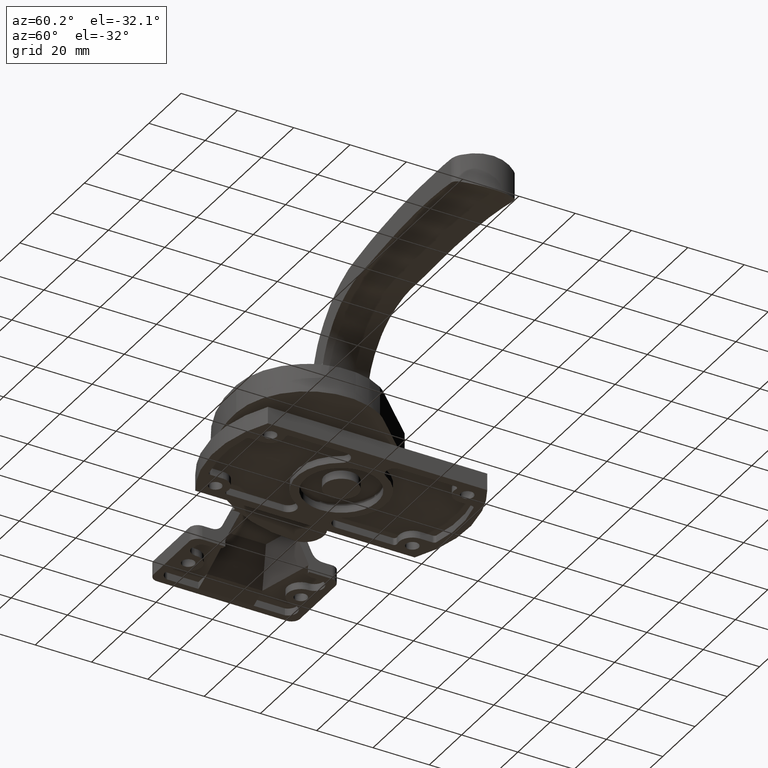
[diagram: clean part render]
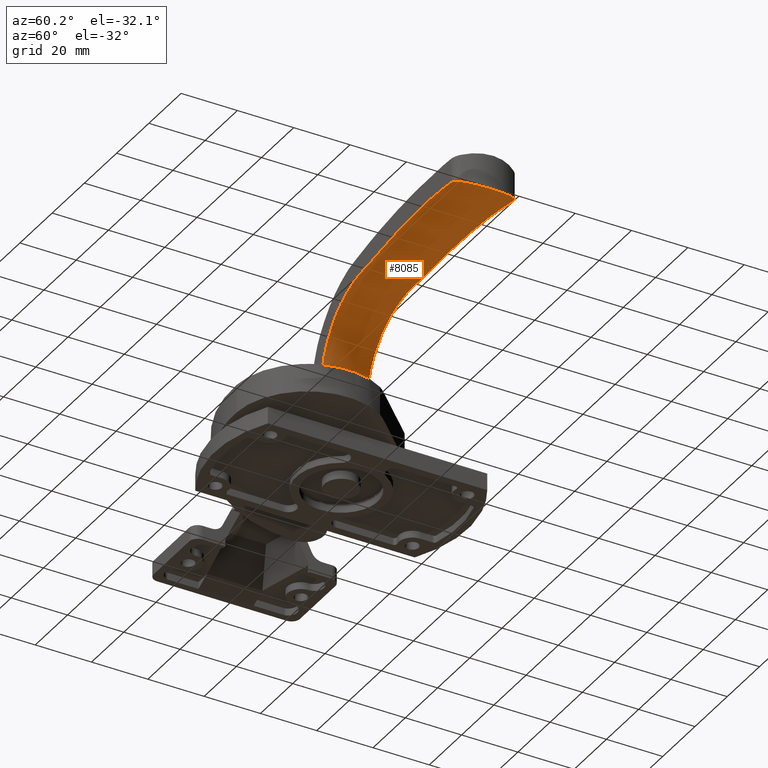
[diagram: same view with one face highlighted and labeled with its STEP entity id]
A machine part, auxiliary view. The second image highlights one B-rep face of the part: STEP entity #8085.
In plain terms, the highlighted face is a freeform B-spline surface patch.
Its self-contained STEP definition (entity closure, byte-faithful):
#5868=CARTESIAN_POINT('',(-123.615692548363400,28.490864937313098,36.193579327158162));
#5869=VERTEX_POINT('',#5868);
#5870=CARTESIAN_POINT('',(-120.389550418366400,29.957898758759299,37.108921338824203));
#5871=VERTEX_POINT('',#5870);
#5872=CARTESIAN_POINT('',(-123.615692548363400,28.490864937313098,36.193579327158162));
#5873=CARTESIAN_POINT('',(-123.421978747935200,28.727946603572370,36.279984811460103));
#5874=CARTESIAN_POINT('',(-123.205349963467200,28.938285569050301,36.366742885507442));
#5875=CARTESIAN_POINT('',(-122.847044018101500,29.215611528801379,36.495669488781971));
#5876=CARTESIAN_POINT('',(-122.721991572031600,29.301624050746121,36.538443184870452));
#5877=CARTESIAN_POINT('',(-122.525581913302010,29.420633547468299,36.602060244509254));
#5878=CARTESIAN_POINT('',(-122.458948845993800,29.458429548318779,36.623071019310338));
#5879=CARTESIAN_POINT('',(-122.324266093929300,29.529823545172491,36.664391395007627));
#5880=CARTESIAN_POINT('',(-122.256080965737400,29.563504384166691,36.684745062498607));
#5881=CARTESIAN_POINT('',(-121.910961185652400,29.721943288495901,36.784910449614742));
#5882=CARTESIAN_POINT('',(-121.621617655227600,29.817228624262960,36.859964513219182));
#5883=CARTESIAN_POINT('',(-121.242074236170790,29.894682470460928,36.945846386587213));
#5884=CARTESIAN_POINT('',(-121.165327105731900,29.908033695335220,36.962603246769739));
#5885=CARTESIAN_POINT('',(-121.011687538408000,29.930165949605239,36.994914742568220));
#5886=CARTESIAN_POINT('',(-120.934589956424400,29.938991844452978,37.010516599164532));
#5887=CARTESIAN_POINT('',(-120.702457584618500,29.958737905811439,37.055632388891119));
#5888=CARTESIAN_POINT('',(-120.546585795629890,29.962951256677790,37.083460333387357));
#5889=CARTESIAN_POINT('',(-120.389550418366400,29.957898758759299,37.108921338824203));
#5890=B_SPLINE_CURVE_WITH_KNOTS('',3,(#5872,#5873,#5874,#5875,#5876,#5877,#5878,#5879,#5880,#5881,#5882,#5883,#5884,#5885,#5886,#5887,#5888,#5889),.UNSPECIFIED.,.F.,.U.,(4,2,2,2,2,2,2,2,4),(0.0,0.250000000000007,0.375000000000011,0.437500000000008,0.500000000000005,0.750000000000007,0.812500000000005,0.875000000000003,1.0),.UNSPECIFIED.);
#5891=EDGE_CURVE('',#5869,#5871,#5890,.T.);
#5945=CARTESIAN_POINT('',(-120.389551045582000,8.042102221063660,37.108922308996753));
#5946=VERTEX_POINT('',#5945);
#5947=CARTESIAN_POINT('',(-123.615693634957200,9.509136392544681,36.193579059695601));
#5948=VERTEX_POINT('',#5947);
#5949=CARTESIAN_POINT('',(-120.389551045582000,8.042102221063660,37.108922308996753));
#5950=CARTESIAN_POINT('',(-120.703561031704790,8.031999153865606,37.058010073392602));
#5951=CARTESIAN_POINT('',(-121.010605127435600,8.058625506757279,36.998080177651843));
#5952=CARTESIAN_POINT('',(-121.386418290115000,8.134646441189624,36.913219352877519));
#5953=CARTESIAN_POINT('',(-121.461176385861510,8.152016747042772,36.895745482252202));
#5954=CARTESIAN_POINT('',(-121.609882261556190,8.191124077547274,36.859811275730742));
#5955=CARTESIAN_POINT('',(-121.683978700985900,8.212910208555460,36.841312448196668));
#5956=CARTESIAN_POINT('',(-121.904037691911200,8.284608739545414,36.784611842109882));
#5957=CARTESIAN_POINT('',(-122.046313563496400,8.340318943795277,36.745598009695627));
#5958=CARTESIAN_POINT('',(-122.322476506232210,8.466856082946904,36.665504187150361));
#5959=CARTESIAN_POINT('',(-122.456361972251300,8.537685626069450,36.624423318591539));
#5960=CARTESIAN_POINT('',(-122.650984486690110,8.655228354715383,36.561470171702339));
#5961=CARTESIAN_POINT('',(-122.714821784576700,8.696297115590760,36.540263363770407));
#5962=CARTESIAN_POINT('',(-122.840405845619300,8.782261741260509,36.497436706595700));
#5963=CARTESIAN_POINT('',(-122.902303374293400,8.827277153005836,36.475761992982797));
#5964=CARTESIAN_POINT('',(-123.204419072872800,9.060539831035175,36.367171975442091));
#5965=CARTESIAN_POINT('',(-123.422048618779700,9.272138837607029,36.279953961175487));
#5966=CARTESIAN_POINT('',(-123.615693634957200,9.509136392544681,36.193579059695601));
#5967=B_SPLINE_CURVE_WITH_KNOTS('',3,(#5949,#5950,#5951,#5952,#5953,#5954,#5955,#5956,#5957,#5958,#5959,#5960,#5961,#5962,#5963,#5964,#5965,#5966),.UNSPECIFIED.,.F.,.U.,(4,2,2,2,2,2,2,2,4),(0.0,0.249999999999992,0.312499999999993,0.374999999999993,0.499999999999995,0.624999999999996,0.687499999999995,0.749999999999995,1.0),.UNSPECIFIED.);
#5968=EDGE_CURVE('',#5946,#5948,#5967,.T.);
#6022=CARTESIAN_POINT('',(-123.615693634957100,9.509136392544665,36.193579059695601));
#6023=CARTESIAN_POINT('',(-123.878637533369000,9.830947609300599,36.076291448824250));
#6024=CARTESIAN_POINT('',(-124.128426728688590,10.163897751787850,35.962737784453431));
#6025=CARTESIAN_POINT('',(-124.601488741726800,10.852733392431260,35.744586586687959));
#6026=CARTESIAN_POINT('',(-124.824763768604700,11.208616116829759,35.639985749175771));
#6027=CARTESIAN_POINT('',(-125.139110014267600,11.760555582883640,35.490998902621463));
#6028=CARTESIAN_POINT('',(-125.240458723472100,11.947559284807580,35.442656879237880));
#6029=CARTESIAN_POINT('',(-125.387190840102090,12.232762097180650,35.372289137384989));
#6030=CARTESIAN_POINT('',(-125.435274101812200,12.328729873900951,35.349164370752433));
#6031=CARTESIAN_POINT('',(-125.529181825769300,12.521290164946500,35.303884262041890));
#6032=CARTESIAN_POINT('',(-125.575049892197000,12.617961293104260,35.281708166312420));
#6033=CARTESIAN_POINT('',(-125.798997474174200,13.103264836908989,35.173173092959679));
#6034=CARTESIAN_POINT('',(-125.960930406100200,13.497730832144610,35.093845470713539));
#6035=CARTESIAN_POINT('',(-126.250756026488300,14.299094002382930,34.950918117159013));
#6036=CARTESIAN_POINT('',(-126.378648325974690,14.705991016191900,34.887316500786781));
#6037=CARTESIAN_POINT('',(-126.600007577068500,15.532459745869870,34.776719639981472));
#6038=CARTESIAN_POINT('',(-126.693477258116200,15.952030287976161,34.729721929275158));
#6039=CARTESIAN_POINT('',(-126.806956931908000,16.591282311454670,34.672502995212717));
#6040=CARTESIAN_POINT('',(-126.840322662607310,16.806017959708509,34.655644890210930));
#6041=CARTESIAN_POINT('',(-126.897893216777310,17.238887924694041,34.626523542446392));
#6042=CARTESIAN_POINT('',(-126.922093118832000,17.457208953466662,34.614262765087553));
#6043=CARTESIAN_POINT('',(-126.980132429603900,18.111909716109651,34.584836962084651));
#6044=CARTESIAN_POINT('',(-126.999709136309310,18.549753008760259,34.574884513113567));
#6045=CARTESIAN_POINT('',(-127.000354283385090,19.428214836342210,34.574556812527263));
#6046=CARTESIAN_POINT('',(-126.981415245718490,19.863876329029331,34.584185000516449));
#6047=CARTESIAN_POINT('',(-126.906496260141400,20.727845179823550,34.622171756759087));
#6048=CARTESIAN_POINT('',(-126.850512628986810,21.156236615567291,34.650532165927778));
#6049=CARTESIAN_POINT('',(-126.702081959232200,22.005970248648168,34.725391397864819));
#6050=CARTESIAN_POINT('',(-126.609634509337600,22.427312286327361,34.771891456875508));
#6051=CARTESIAN_POINT('',(-126.443426663993710,23.054031372257882,34.854959458019117));
#6052=CARTESIAN_POINT('',(-126.383428143041800,23.262054287058369,34.884869980798172));
#6053=CARTESIAN_POINT('',(-126.286452634472990,23.572752298018269,34.933044607397370));
#6054=CARTESIAN_POINT('',(-126.253000945669300,23.675967558650470,34.949635974217173));
#6055=CARTESIAN_POINT('',(-126.184116542402510,23.880936544601081,34.983738880782028));
#6056=CARTESIAN_POINT('',(-126.148648713236100,23.982804002501300,35.001267873792308));
#6057=CARTESIAN_POINT('',(-125.966248241994710,24.489103632254441,35.091238350115837));
#6058=CARTESIAN_POINT('',(-125.804164856967600,24.884441351323179,35.170647122999881));
#6059=CARTESIAN_POINT('',(-125.448829624672300,25.656618791250398,35.342900739872157));
#6060=CARTESIAN_POINT('',(-125.255575090193900,26.033456447282340,35.435748737750806));
#6061=CARTESIAN_POINT('',(-124.838255322186200,26.769102329576071,35.633638670258719));
#6062=CARTESIAN_POINT('',(-124.614190477609800,27.127910136372609,35.738683198171763));
#6063=CARTESIAN_POINT('',(-124.314604852576590,27.565198587889022,35.876892417377043));
#6064=CARTESIAN_POINT('',(-124.253713007974700,27.652085918623559,35.904878171898019));
#6065=CARTESIAN_POINT('',(-124.130429340569090,27.824100431347230,35.961309471838113));
#6066=CARTESIAN_POINT('',(-123.943087309525200,28.079726911828100,36.046722911716472));
#6067=CARTESIAN_POINT('',(-123.748551326102500,28.328262058193690,36.134316926090797));
#6068=CARTESIAN_POINT('',(-123.615692548363500,28.490864937313159,36.193579327158140));
#6069=B_SPLINE_CURVE_WITH_KNOTS('',3,(#6022,#6023,#6024,#6025,#6026,#6027,#6028,#6029,#6030,#6031,#6032,#6033,#6034,#6035,#6036,#6037,#6038,#6039,#6040,#6041,#6042,#6043,#6044,#6045,#6046,#6047,#6048,#6049,#6050,#6051,#6052,#6053,#6054,#6055,#6056,#6057,#6058,#6059,#6060,#6061,#6062,#6063,#6064,#6065,#6066,#6067,#6068),.UNSPECIFIED.,.F.,.U.,(4,2,2,2,2,2,2,2,2,2,2,2,2,2,2,2,2,2,2,2,2,2,1,4),(0.0,0.062500000000001,0.125000000000002,0.156250000000004,0.171875000000006,0.187500000000007,0.250000000000006,0.312500000000005,0.375000000000004,0.406250000000004,0.437500000000004,0.500000000000002,0.562500000000000,0.624999999999999,0.687499999999997,0.718749999999997,0.734374999999996,0.749999999999996,0.812499999999996,0.874999999999996,0.937499999999996,0.953124999999997,0.968749999999998,0.999999972635588),.UNSPECIFIED.);
#6070=EDGE_CURVE('',#5948,#5869,#6069,.T.);
#7224=CARTESIAN_POINT('',(-36.129667860286297,10.753235243308721,17.600000000000001));
#7225=VERTEX_POINT('',#7224);
#7231=CARTESIAN_POINT('',(-36.129667522280492,27.246765745685199,17.600000000000001));
#7232=VERTEX_POINT('',#7231);
#7233=CARTESIAN_POINT('',(-36.129667522280492,27.246765745685199,17.600000000000001));
#7234=CARTESIAN_POINT('',(-37.038081067834497,24.588788363700949,17.600000000000001));
#7235=CARTESIAN_POINT('',(-37.492287870669450,21.794394447750001,17.600000000000001));
#7236=CARTESIAN_POINT('',(-37.492287985217153,16.205606597229352,17.600000000000001));
#7237=CARTESIAN_POINT('',(-37.038081296929953,13.411212662659560,17.600000000000001));
#7238=CARTESIAN_POINT('',(-36.129667860286297,10.753235243308721,17.600000000000001));
#7239=B_SPLINE_CURVE_WITH_KNOTS('',3,(#7233,#7234,#7235,#7236,#7237,#7238),.UNSPECIFIED.,.F.,.U.,(4,2,4),(0.0,0.500000000000000,1.0),.UNSPECIFIED.);
#7240=EDGE_CURVE('',#7232,#7225,#7239,.T.);
#7465=CARTESIAN_POINT('',(-114.780559554541600,29.777424732715751,37.922086692367301));
#7466=VERTEX_POINT('',#7465);
#7467=CARTESIAN_POINT('',(-120.389550418366400,29.957898758759299,37.108921338824203));
#7468=CARTESIAN_POINT('',(-118.521656148282700,29.897797680449500,37.411788454358700));
#7469=CARTESIAN_POINT('',(-116.652382161092110,29.837652208574589,37.689848986762712));
#7470=CARTESIAN_POINT('',(-114.780559554541600,29.777424732715751,37.922086692367301));
#7471=B_SPLINE_CURVE_WITH_KNOTS('',3,(#7467,#7468,#7469,#7470),.UNSPECIFIED.,.F.,.U.,(4,4),(0.065240312748936,0.120512185644654),.UNSPECIFIED.);
#7472=EDGE_CURVE('',#5871,#7466,#7471,.T.);
#7575=CARTESIAN_POINT('',(-37.088196315556303,27.277607220624549,20.485746129402450));
#7576=VERTEX_POINT('',#7575);
#7577=CARTESIAN_POINT('',(-37.088196315556303,27.277607220624549,20.485746129402450));
#7578=CARTESIAN_POINT('',(-36.725643646925903,27.265941781805640,19.543922892398150));
#7579=CARTESIAN_POINT('',(-36.427655584580201,27.256353763812751,18.571961446199051));
#7580=CARTESIAN_POINT('',(-36.129667522280492,27.246765745685199,17.600000000000001));
#7581=B_SPLINE_CURVE_WITH_KNOTS('',3,(#7577,#7578,#7579,#7580),.UNSPECIFIED.,.F.,.U.,(4,4),(0.970821272492334,1.0),.UNSPECIFIED.);
#7582=EDGE_CURVE('',#7576,#7232,#7581,.T.);
#7584=CARTESIAN_POINT('',(-39.189401604279396,27.345215278331551,24.522012288374800));
#7585=VERTEX_POINT('',#7584);
#7586=CARTESIAN_POINT('',(-39.189401604279396,27.345215278331551,24.522012288374800));
#7587=CARTESIAN_POINT('',(-38.269910115840077,27.315629861835490,23.142959750252039));
#7588=CARTESIAN_POINT('',(-37.611736571111543,27.294452571243269,21.845775777099739));
#7589=CARTESIAN_POINT('',(-37.088196315556303,27.277607220624549,20.485746129402450));
#7590=B_SPLINE_CURVE_WITH_KNOTS('',3,(#7586,#7587,#7588,#7589),.UNSPECIFIED.,.F.,.U.,(4,4),(0.928686046970893,0.970821272492334),.UNSPECIFIED.);
#7591=EDGE_CURVE('',#7585,#7576,#7590,.T.);
#7593=CARTESIAN_POINT('',(-43.148851474079201,27.472613927441198,29.410390440262852));
#7594=VERTEX_POINT('',#7593);
#7595=CARTESIAN_POINT('',(-43.148851474079201,27.472613927441198,29.410390440262852));
#7596=CARTESIAN_POINT('',(-42.007600545758379,27.435893213366459,28.229258528821049));
#7597=CARTESIAN_POINT('',(-40.379587236531698,27.383510507902841,26.307051668979309));
#7598=CARTESIAN_POINT('',(-39.189401604279396,27.345215278331551,24.522012288374800));
#7599=B_SPLINE_CURVE_WITH_KNOTS('',3,(#7595,#7596,#7597,#7598),.UNSPECIFIED.,.F.,.U.,(4,4),(0.874146401245127,0.928686046970893),.UNSPECIFIED.);
#7600=EDGE_CURVE('',#7594,#7585,#7599,.T.);
#7602=CARTESIAN_POINT('',(-45.546003469512598,27.549744320796549,31.490515649748900));
#7603=VERTEX_POINT('',#7602);
#7604=CARTESIAN_POINT('',(-45.546003469512598,27.549744320796549,31.490515649748900));
#7605=CARTESIAN_POINT('',(-44.810127426924673,27.526066886602429,30.937108745374740));
#7606=CARTESIAN_POINT('',(-44.177034080810813,27.505696572617580,30.474502860646101));
#7607=CARTESIAN_POINT('',(-43.148851474079201,27.472613927441198,29.410390440262852));
#7608=B_SPLINE_CURVE_WITH_KNOTS('',3,(#7604,#7605,#7606,#7607),.UNSPECIFIED.,.F.,.U.,(4,4),(0.825010217675883,0.874146401245127),.UNSPECIFIED.);
#7609=EDGE_CURVE('',#7603,#7594,#7608,.T.);
#7611=CARTESIAN_POINT('',(-48.121576841421202,27.632615572877949,33.246233073444550));
#7612=VERTEX_POINT('',#7611);
#7613=CARTESIAN_POINT('',(-48.121576841421223,27.632615572878059,33.246233073444579));
#7614=CARTESIAN_POINT('',(-47.007035433759647,27.596754260225591,32.600999057588439));
#7615=CARTESIAN_POINT('',(-46.231875114350643,27.571812821191529,32.006317336175577));
#7616=CARTESIAN_POINT('',(-45.546003469512598,27.549744320796549,31.490515649748900));
#7617=B_SPLINE_CURVE_WITH_KNOTS('',3,(#7613,#7614,#7615,#7616),.UNSPECIFIED.,.F.,.U.,(4,4),(0.779212945995489,0.825010217675883),.UNSPECIFIED.);
#7618=EDGE_CURVE('',#7612,#7603,#7617,.T.);
#7620=CARTESIAN_POINT('',(-56.302319424945402,27.895837886109700,36.487496709594502));
#7621=VERTEX_POINT('',#7620);
#7622=CARTESIAN_POINT('',(-56.302319424945424,27.895837886109671,36.487496709594488));
#7623=CARTESIAN_POINT('',(-53.331451256396313,27.800247689541632,35.774575805222980));
#7624=CARTESIAN_POINT('',(-50.159292776793187,27.698180806931251,34.425914355015543));
#7625=CARTESIAN_POINT('',(-48.121576841421209,27.632615572878059,33.246233073444579));
#7626=B_SPLINE_CURVE_WITH_KNOTS('',3,(#7622,#7623,#7624,#7625),.UNSPECIFIED.,.F.,.U.,(4,4),(0.695481799124079,0.779212945995489),.UNSPECIFIED.);
#7627=EDGE_CURVE('',#7621,#7612,#7626,.T.);
#7629=CARTESIAN_POINT('',(-67.000035754978796,28.240045958902350,37.447725859809047));
#7630=VERTEX_POINT('',#7629);
#7631=CARTESIAN_POINT('',(-67.000035754978896,28.240045958902279,37.447725859809083));
#7632=CARTESIAN_POINT('',(-63.469028742676592,28.126432821179659,37.274765747341583));
#7633=CARTESIAN_POINT('',(-60.045443866913807,28.016276081575331,37.385736385994001));
#7634=CARTESIAN_POINT('',(-56.302319424945502,27.895837886109671,36.487496709594510));
#7635=B_SPLINE_CURVE_WITH_KNOTS('',3,(#7631,#7632,#7633,#7634),.UNSPECIFIED.,.F.,.U.,(4,4),(0.589985329867594,0.695481799124079),.UNSPECIFIED.);
#7636=EDGE_CURVE('',#7630,#7621,#7635,.T.);
#7638=CARTESIAN_POINT('',(-74.000035754978597,28.465276880644399,37.998597684121400));
#7639=VERTEX_POINT('',#7638);
#7640=CARTESIAN_POINT('',(-74.000035754978484,28.465276880644272,37.998597684121400));
#7641=CARTESIAN_POINT('',(-71.654956103988596,28.389821959022719,37.794445522554248));
#7642=CARTESIAN_POINT('',(-69.304616226357453,28.314197785159031,37.560611644552992));
#7643=CARTESIAN_POINT('',(-67.000035754978754,28.240045958902279,37.447725859809083));
#7644=B_SPLINE_CURVE_WITH_KNOTS('',3,(#7640,#7641,#7642,#7643),.UNSPECIFIED.,.F.,.U.,(4,4),(0.521131005307820,0.589985329867594),.UNSPECIFIED.);
#7645=EDGE_CURVE('',#7639,#7630,#7644,.T.);
#7647=CARTESIAN_POINT('',(-97.000035754978896,29.205321337796949,38.969999581346897));
#7648=VERTEX_POINT('',#7647);
#7649=CARTESIAN_POINT('',(-97.000035754978867,29.205321337796700,38.969999581346890));
#7650=CARTESIAN_POINT('',(-89.334953187948102,28.958690821825108,39.018865235086352));
#7651=CARTESIAN_POINT('',(-81.695819146450887,28.712895221614009,38.668558217725682));
#7652=CARTESIAN_POINT('',(-74.000035754978498,28.465276880644272,37.998597684121400));
#7653=B_SPLINE_CURVE_WITH_KNOTS('',3,(#7649,#7650,#7651,#7652),.UNSPECIFIED.,.F.,.U.,(4,4),(0.295173662172599,0.521131005307820),.UNSPECIFIED.);
#7654=EDGE_CURVE('',#7648,#7639,#7653,.T.);
#7656=CARTESIAN_POINT('',(-114.780559554541600,29.777424732715499,37.922086692367273));
#7657=CARTESIAN_POINT('',(-108.865516938057890,29.587103232622070,38.655947263671372));
#7658=CARTESIAN_POINT('',(-102.925024163366300,29.395962852158419,38.932227198669658));
#7659=CARTESIAN_POINT('',(-97.000035754978867,29.205321337796700,38.969999581346890));
#7660=B_SPLINE_CURVE_WITH_KNOTS('',3,(#7656,#7657,#7658,#7659),.UNSPECIFIED.,.F.,.U.,(4,4),(0.120512185644654,0.295173662172599),.UNSPECIFIED.);
#7661=EDGE_CURVE('',#7466,#7648,#7660,.T.);
#7681=CARTESIAN_POINT('',(-114.780559554541600,8.222576267285890,37.922086692367301));
#7682=VERTEX_POINT('',#7681);
#7683=CARTESIAN_POINT('',(-120.389551045582000,8.042102221063660,37.108922308996753));
#7684=CARTESIAN_POINT('',(-118.521656566568690,8.102203306095110,37.411789104678242));
#7685=CARTESIAN_POINT('',(-116.652382370383510,8.162348784693755,37.689849315295270));
#7686=CARTESIAN_POINT('',(-114.780559554541600,8.222576267285890,37.922086692367301));
#7687=B_SPLINE_CURVE_WITH_KNOTS('',3,(#7683,#7684,#7685,#7686),.UNSPECIFIED.,.F.,.U.,(4,4),(0.0,0.055271877413623),.UNSPECIFIED.);
#7688=EDGE_CURVE('',#5946,#7682,#7687,.T.);
#7690=CARTESIAN_POINT('',(-97.000035754978995,8.794679662204610,38.969999581346897));
#7691=VERTEX_POINT('',#7690);
#7692=CARTESIAN_POINT('',(-114.780559554541600,8.222576267285890,37.922086692367301));
#7693=CARTESIAN_POINT('',(-108.865516938054200,8.412897767378226,38.655947263671393));
#7694=CARTESIAN_POINT('',(-102.925024163350700,8.604038147842237,38.932227198669693));
#7695=CARTESIAN_POINT('',(-97.000035754978995,8.794679662204610,38.969999581346897));
#7696=B_SPLINE_CURVE_WITH_KNOTS('',3,(#7692,#7693,#7694,#7695),.UNSPECIFIED.,.F.,.U.,(4,4),(0.120512185644654,0.295173662172599),.UNSPECIFIED.);
#7697=EDGE_CURVE('',#7682,#7691,#7696,.T.);
#7699=CARTESIAN_POINT('',(-74.000035754968494,9.534724119357550,37.998597684121400));
#7700=VERTEX_POINT('',#7699);
#7701=CARTESIAN_POINT('',(-97.000035754978995,8.794679662204610,38.969999581346897));
#7702=CARTESIAN_POINT('',(-89.334953187968381,9.041310178174321,39.018865235086373));
#7703=CARTESIAN_POINT('',(-81.695819146537701,9.287105778383234,38.668558217725682));
#7704=CARTESIAN_POINT('',(-74.000035754968494,9.534724119357550,37.998597684121400));
#7705=B_SPLINE_CURVE_WITH_KNOTS('',3,(#7701,#7702,#7703,#7704),.UNSPECIFIED.,.F.,.U.,(4,4),(0.295173662172600,0.521131005307820),.UNSPECIFIED.);
#7706=EDGE_CURVE('',#7691,#7700,#7705,.T.);
#7708=CARTESIAN_POINT('',(-67.000035754968408,9.759955041099730,37.447725859809047));
#7709=VERTEX_POINT('',#7708);
#7710=CARTESIAN_POINT('',(-74.000035754968494,9.534724119357550,37.998597684121400));
#7711=CARTESIAN_POINT('',(-71.654956103962334,9.610179040978148,37.794445522554263));
#7712=CARTESIAN_POINT('',(-69.304616226290406,9.685803214843144,37.560611644552992));
#7713=CARTESIAN_POINT('',(-67.000035754968408,9.759955041099730,37.447725859809047));
#7714=B_SPLINE_CURVE_WITH_KNOTS('',3,(#7710,#7711,#7712,#7713),.UNSPECIFIED.,.F.,.U.,(4,4),(0.521131005307820,0.589985329867594),.UNSPECIFIED.);
#7715=EDGE_CURVE('',#7700,#7709,#7714,.T.);
#7717=CARTESIAN_POINT('',(-56.302319424945502,10.104163113892460,36.487496709594453));
#7718=VERTEX_POINT('',#7717);
#7719=CARTESIAN_POINT('',(-67.000035754968408,9.759955041099730,37.447725859809047));
#7720=CARTESIAN_POINT('',(-63.469028742779500,9.873568178817047,37.274765747341590));
#7721=CARTESIAN_POINT('',(-60.045443867372931,9.983724918409900,37.385736385994008));
#7722=CARTESIAN_POINT('',(-56.302319424945502,10.104163113892460,36.487496709594453));
#7723=B_SPLINE_CURVE_WITH_KNOTS('',3,(#7719,#7720,#7721,#7722),.UNSPECIFIED.,.F.,.U.,(4,4),(0.589985329867594,0.695481799124079),.UNSPECIFIED.);
#7724=EDGE_CURVE('',#7709,#7718,#7723,.T.);
#7726=CARTESIAN_POINT('',(-48.121576841421302,10.367385427124800,33.246233073444550));
#7727=VERTEX_POINT('',#7726);
#7728=CARTESIAN_POINT('',(-56.302319424945502,10.104163113892460,36.487496709594453));
#7729=CARTESIAN_POINT('',(-53.331451256031947,10.199753310470101,35.774575805222980));
#7730=CARTESIAN_POINT('',(-50.159292775550881,10.301820193108730,34.425914355015543));
#7731=CARTESIAN_POINT('',(-48.121576841421302,10.367385427124800,33.246233073444550));
#7732=B_SPLINE_CURVE_WITH_KNOTS('',3,(#7728,#7729,#7730,#7731),.UNSPECIFIED.,.F.,.U.,(4,4),(0.695481799124079,0.779212945995489),.UNSPECIFIED.);
#7733=EDGE_CURVE('',#7718,#7727,#7732,.T.);
#7735=CARTESIAN_POINT('',(-45.546003469517402,10.450256679206380,31.490515649752140));
#7736=VERTEX_POINT('',#7735);
#7737=CARTESIAN_POINT('',(-48.121576841421302,10.367385427124800,33.246233073444550));
#7738=CARTESIAN_POINT('',(-47.007035434432922,10.403246739752740,32.600999057584851));
#7739=CARTESIAN_POINT('',(-46.231875116335253,10.428188178744600,32.006317336168962));
#7740=CARTESIAN_POINT('',(-45.546003469517402,10.450256679206380,31.490515649752140));
#7741=B_SPLINE_CURVE_WITH_KNOTS('',3,(#7737,#7738,#7739,#7740),.UNSPECIFIED.,.F.,.U.,(4,4),(0.779212945995489,0.825010217675883),.UNSPECIFIED.);
#7742=EDGE_CURVE('',#7727,#7736,#7741,.T.);
#7744=CARTESIAN_POINT('',(-43.148851474079152,10.527387072562240,29.410390440262749));
#7745=VERTEX_POINT('',#7744);
#7746=CARTESIAN_POINT('',(-45.546003469517402,10.450256679206380,31.490515649752140));
#7747=CARTESIAN_POINT('',(-44.810127424786003,10.473934113466351,30.937108745374740));
#7748=CARTESIAN_POINT('',(-44.177034072726663,10.494304427642490,30.474502860646101));
#7749=CARTESIAN_POINT('',(-43.148851474079152,10.527387072562240,29.410390440262749));
#7750=B_SPLINE_CURVE_WITH_KNOTS('',3,(#7746,#7747,#7748,#7749),.UNSPECIFIED.,.F.,.U.,(4,4),(0.825010217675883,0.874146401245127),.UNSPECIFIED.);
#7751=EDGE_CURVE('',#7736,#7745,#7750,.T.);
#7753=CARTESIAN_POINT('',(-39.189401604279553,10.654785721672740,24.522012288374899));
#7754=VERTEX_POINT('',#7753);
#7755=CARTESIAN_POINT('',(-43.148851474079152,10.527387072562240,29.410390440262749));
#7756=CARTESIAN_POINT('',(-42.007600554731447,10.564107786344771,28.229258528821049));
#7757=CARTESIAN_POINT('',(-40.379587271762773,10.616490490963519,26.307051668979309));
#7758=CARTESIAN_POINT('',(-39.189401604279553,10.654785721672740,24.522012288374899));
#7759=B_SPLINE_CURVE_WITH_KNOTS('',3,(#7755,#7756,#7757,#7758),.UNSPECIFIED.,.F.,.U.,(4,4),(0.874146401245127,0.928686046970893),.UNSPECIFIED.);
#7760=EDGE_CURVE('',#7745,#7754,#7759,.T.);
#7762=CARTESIAN_POINT('',(-37.088196315556452,10.722393779380480,20.485746129402351));
#7763=VERTEX_POINT('',#7762);
#7764=CARTESIAN_POINT('',(-39.189401604279553,10.654785721672740,24.522012288374899));
#7765=CARTESIAN_POINT('',(-38.269910088621927,10.684371139040220,23.142959750252061));
#7766=CARTESIAN_POINT('',(-37.611736479975377,10.705548431689040,21.845775777099760));
#7767=CARTESIAN_POINT('',(-37.088196315556452,10.722393779380480,20.485746129402351));
#7768=B_SPLINE_CURVE_WITH_KNOTS('',3,(#7764,#7765,#7766,#7767),.UNSPECIFIED.,.F.,.U.,(4,4),(0.928686046970893,0.970821272492334),.UNSPECIFIED.);
#7769=EDGE_CURVE('',#7754,#7763,#7768,.T.);
#7771=CARTESIAN_POINT('',(-37.088196315556452,10.722393779380480,20.485746129402351));
#7772=CARTESIAN_POINT('',(-36.725643710037900,10.734059216163610,19.543922892398150));
#7773=CARTESIAN_POINT('',(-36.427655785161797,10.743647229733300,18.571961446199051));
#7774=CARTESIAN_POINT('',(-36.129667860286297,10.753235243308721,17.600000000000001));
#7775=B_SPLINE_CURVE_WITH_KNOTS('',3,(#7771,#7772,#7773,#7774),.UNSPECIFIED.,.F.,.U.,(4,4),(0.970821272492334,1.0),.UNSPECIFIED.);
#7776=EDGE_CURVE('',#7763,#7225,#7775,.T.);
#7972=CARTESIAN_POINT('',(-127.000035754979810,7.829404283309091,35.967370994336399));
#7973=CARTESIAN_POINT('',(-127.000035754979810,11.480631780690040,35.038936070143187));
#7974=CARTESIAN_POINT('',(-127.000035754979810,15.240316140345101,34.574718608046602));
#7975=CARTESIAN_POINT('',(-127.000035754979810,22.759684859655099,34.574718608046602));
#7976=CARTESIAN_POINT('',(-127.000035754979810,26.519369219310150,35.038936070143187));
#7977=CARTESIAN_POINT('',(-127.000035754979810,30.170596716691101,35.967370994336399));
#7978=CARTESIAN_POINT('',(-122.930915677877390,7.960331664115481,36.691555839308947));
#7979=CARTESIAN_POINT('',(-122.931161446233200,11.567794021505280,35.767264000183701));
#7980=CARTESIAN_POINT('',(-122.931279556168410,15.283898398166251,35.305143744857553));
#7981=CARTESIAN_POINT('',(-122.931279556167990,22.716102601834152,35.305143744857553));
#7982=CARTESIAN_POINT('',(-122.931161446232390,26.432206978495000,35.767264000183701));
#7983=CARTESIAN_POINT('',(-122.930915677876000,30.039669335884700,36.691555839308947));
#7984=CARTESIAN_POINT('',(-112.964312976637200,8.281015537406450,38.465320804544447));
#7985=CARTESIAN_POINT('',(-112.965160711883400,11.781282787699119,37.551176732515650));
#7986=CARTESIAN_POINT('',(-112.965568111585600,15.390645567160000,37.094193220826163));
#7987=CARTESIAN_POINT('',(-112.965568111584200,22.609355432840751,37.094193220826163));
#7988=CARTESIAN_POINT('',(-112.965160711880400,26.218718212301400,37.551176732515650));
#7989=CARTESIAN_POINT('',(-112.964312976632600,29.718985462593601,38.465320804544447));
#7990=CARTESIAN_POINT('',(-95.239883793709808,8.851314040580911,39.289647056298087));
#7991=CARTESIAN_POINT('',(-95.233985046701292,12.159504800521100,38.392093050940112));
#7992=CARTESIAN_POINT('',(-95.231150260976705,15.579725350917100,37.942700074584053));
#7993=CARTESIAN_POINT('',(-95.231150260987206,22.420275649078850,37.942700074584053));
#7994=CARTESIAN_POINT('',(-95.233985046722395,25.840496199476551,38.392093050940112));
#7995=CARTESIAN_POINT('',(-95.239883793740901,29.148686959420200,39.289647056298037));
#7996=CARTESIAN_POINT('',(-79.368001836659616,9.362005269576221,38.561811728612987));
#7997=CARTESIAN_POINT('',(-79.388298252764599,12.492589107644379,37.615778008606704));
#7998=CARTESIAN_POINT('',(-79.398052187041316,15.746388735437449,37.144880591603943));
#7999=CARTESIAN_POINT('',(-79.398052187005007,22.253612264576851,37.144880591603943));
#8000=CARTESIAN_POINT('',(-79.388298252691996,25.507411892363951,37.615778008606704));
#8001=CARTESIAN_POINT('',(-79.368001836552494,28.637995730420350,38.561811728612987));
#8002=CARTESIAN_POINT('',(-65.703498065122886,9.801672238091941,37.202338599549549));
#8003=CARTESIAN_POINT('',(-65.678954177066899,12.810004477119501,36.469443142267302));
#8004=CARTESIAN_POINT('',(-65.667159017283296,15.904888899685901,36.100432430512448));
#8005=CARTESIAN_POINT('',(-65.667159017327194,22.095112100296902,36.100432430512448));
#8006=CARTESIAN_POINT('',(-65.678954177154708,25.189996522870452,36.469443142267302));
#8007=CARTESIAN_POINT('',(-65.703498065252504,28.198328761912251,37.202338599549549));
#8008=CARTESIAN_POINT('',(-57.328190009971507,10.071154859968420,37.473812308429153));
#8009=CARTESIAN_POINT('',(-57.468731095600099,12.992488379655120,36.632090226869302));
#8010=CARTESIAN_POINT('',(-57.536271517776200,15.996894862597349,36.225905117971898));
#8011=CARTESIAN_POINT('',(-57.536271517524803,22.003106137501351,36.225905117971898));
#8012=CARTESIAN_POINT('',(-57.468731095097397,25.007512620402700,36.632090226869302));
#8013=CARTESIAN_POINT('',(-57.328190009229701,27.928846140007700,37.473812308429153));
#8014=CARTESIAN_POINT('',(-48.424260960365501,10.357646309535280,33.688255584679098));
#8015=CARTESIAN_POINT('',(-48.097906315975003,13.048797364674961,32.427896839263703));
#8016=CARTESIAN_POINT('',(-47.941068688297200,16.022888566235000,31.763638047650300));
#8017=CARTESIAN_POINT('',(-47.941068688880897,21.977112433535801,31.763638047650300));
#8018=CARTESIAN_POINT('',(-48.097906317142403,24.951203635190701,32.427896839263703));
#8019=CARTESIAN_POINT('',(-48.424260962088013,27.642354690520150,33.688255584679098));
#8020=CARTESIAN_POINT('',(-45.400200689276602,10.454948007001139,31.368279541413699));
#8021=CARTESIAN_POINT('',(-46.044921271815497,13.273850279213621,30.662187535428149));
#8022=CARTESIAN_POINT('',(-46.354757360924303,16.137766765238101,30.316450921340049));
#8023=CARTESIAN_POINT('',(-46.354757359771199,21.862234235214650,30.316450921340049));
#8024=CARTESIAN_POINT('',(-46.044921269509402,24.726150721051699,30.662187535428149));
#8025=CARTESIAN_POINT('',(-45.400200685873813,27.545052992889349,31.368279541413699));
#8026=CARTESIAN_POINT('',(-43.474320011021248,10.516914847048040,29.961024620558650));
#8027=CARTESIAN_POINT('',(-45.076577763248103,13.062701374722581,30.181585181875601));
#8028=CARTESIAN_POINT('',(-45.931748708109687,16.028764785278501,30.289582243200002));
#8029=CARTESIAN_POINT('',(-45.931748713085099,21.971236212767749,30.289582243200002));
#8030=CARTESIAN_POINT('',(-45.076577773198899,24.937299624132351,30.181585181875601));
#8031=CARTESIAN_POINT('',(-43.474320025704699,27.483086153424349,29.961024620558650));
#8032=CARTESIAN_POINT('',(-39.121847036802357,10.656959347025261,24.822028829895800));
#8033=CARTESIAN_POINT('',(-40.120457077001703,13.313736480363120,24.775286219171502));
#8034=CARTESIAN_POINT('',(-40.642502744957000,16.156136450210600,24.752398788314800));
#8035=CARTESIAN_POINT('',(-40.642502726145203,21.843864557176200,24.752398788314800));
#8036=CARTESIAN_POINT('',(-40.120457039378103,24.686264523965949,24.775286219171502));
#8037=CARTESIAN_POINT('',(-39.121846981285351,27.343041651188400,24.822028829895800));
#8038=CARTESIAN_POINT('',(-37.155949946456950,10.720213748983600,20.947473294758399));
#8039=CARTESIAN_POINT('',(-38.172876111310551,13.370781494726939,20.954218136062000));
#8040=CARTESIAN_POINT('',(-38.678057786697643,16.185496622900800,20.957520734838202));
#8041=CARTESIAN_POINT('',(-38.678057832577387,21.814504359083500,20.957520734838202));
#8042=CARTESIAN_POINT('',(-38.172876203070103,24.629219494714750,20.954218136062000));
#8043=CARTESIAN_POINT('',(-37.155950081856453,27.279787255372899,20.947473294758399));
#8044=CARTESIAN_POINT('',(-36.427655785161797,10.743647229733300,18.571961446199051));
#8045=CARTESIAN_POINT('',(-37.367576624241948,13.399473200386099,18.573919856358149));
#8046=CARTESIAN_POINT('',(-37.836584243804452,16.199767530563150,18.574878788185249));
#8047=CARTESIAN_POINT('',(-37.836584175837899,21.800233496125148,18.574878788185249));
#8048=CARTESIAN_POINT('',(-37.367576488308899,24.600527815254800,18.573919856358149));
#8049=CARTESIAN_POINT('',(-36.427655584580201,27.256353763812751,18.571961446199051));
#8050=CARTESIAN_POINT('',(-36.129667860285700,10.753235243302999,17.600000000000001));
#8051=CARTESIAN_POINT('',(-37.038081296929953,13.411212662659560,17.600000000000001));
#8052=CARTESIAN_POINT('',(-37.492287985217153,16.205606597229352,17.600000000000001));
#8053=CARTESIAN_POINT('',(-37.492287870669450,21.794394447750001,17.600000000000001));
#8054=CARTESIAN_POINT('',(-37.038081067834497,24.588788363700949,17.600000000000001));
#8055=CARTESIAN_POINT('',(-36.129667522234499,27.246765745819850,17.600000000000001));
#8056=B_SPLINE_SURFACE_WITH_KNOTS('',3,3,((#7972,#7978,#7984,#7990,#7996,#8002,#8008,#8014,#8020,#8026,#8032,#8038,#8044,#8050),(#7973,#7979,#7985,#7991,#7997,#8003,#8009,#8015,#8021,#8027,#8033,#8039,#8045,#8051),(#7974,#7980,#7986,#7992,#7998,#8004,#8010,#8016,#8022,#8028,#8034,#8040,#8046,#8052),(#7975,#7981,#7987,#7993,#7999,#8005,#8011,#8017,#8023,#8029,#8035,#8041,#8047,#8053),(#7976,#7982,#7988,#7994,#8000,#8006,#8012,#8018,#8024,#8030,#8036,#8042,#8048,#8054),(#7977,#7983,#7989,#7995,#8001,#8007,#8013,#8019,#8025,#8031,#8037,#8043,#8049,#8055)),.UNSPECIFIED.,.F.,.F.,.U.,(4,2,4),(4,1,1,1,1,1,1,1,1,1,1,4),(0.0,11.302260075526140,22.604520151052281),(0.0,15.428733487335441,37.790002245667907,66.718492821876893,75.533659664968440,89.039986011190408,99.759777895781752,105.623034755858800,111.913760268961990,118.896271239908500,124.290689750547500,128.026335302133500),.UNSPECIFIED.);
#8057=ORIENTED_EDGE('',*,*,#7688,.F.);
#8058=ORIENTED_EDGE('',*,*,#5968,.T.);
#8059=ORIENTED_EDGE('',*,*,#6070,.T.);
#8060=ORIENTED_EDGE('',*,*,#5891,.T.);
#8061=ORIENTED_EDGE('',*,*,#7472,.T.);
#8062=ORIENTED_EDGE('',*,*,#7661,.T.);
#8063=ORIENTED_EDGE('',*,*,#7654,.T.);
#8064=ORIENTED_EDGE('',*,*,#7645,.T.);
#8065=ORIENTED_EDGE('',*,*,#7636,.T.);
#8066=ORIENTED_EDGE('',*,*,#7627,.T.);
#8067=ORIENTED_EDGE('',*,*,#7618,.T.);
#8068=ORIENTED_EDGE('',*,*,#7609,.T.);
#8069=ORIENTED_EDGE('',*,*,#7600,.T.);
#8070=ORIENTED_EDGE('',*,*,#7591,.T.);
#8071=ORIENTED_EDGE('',*,*,#7582,.T.);
#8072=ORIENTED_EDGE('',*,*,#7240,.T.);
#8073=ORIENTED_EDGE('',*,*,#7776,.F.);
#8074=ORIENTED_EDGE('',*,*,#7769,.F.);
#8075=ORIENTED_EDGE('',*,*,#7760,.F.);
#8076=ORIENTED_EDGE('',*,*,#7751,.F.);
#8077=ORIENTED_EDGE('',*,*,#7742,.F.);
#8078=ORIENTED_EDGE('',*,*,#7733,.F.);
#8079=ORIENTED_EDGE('',*,*,#7724,.F.);
#8080=ORIENTED_EDGE('',*,*,#7715,.F.);
#8081=ORIENTED_EDGE('',*,*,#7706,.F.);
#8082=ORIENTED_EDGE('',*,*,#7697,.F.);
#8083=EDGE_LOOP('',(#8057,#8058,#8059,#8060,#8061,#8062,#8063,#8064,#8065,#8066,#8067,#8068,#8069,#8070,#8071,#8072,#8073,#8074,#8075,#8076,#8077,#8078,#8079,#8080,#8081,#8082));
#8084=FACE_OUTER_BOUND('',#8083,.T.);
#8085=ADVANCED_FACE('',(#8084),#8056,.T.);